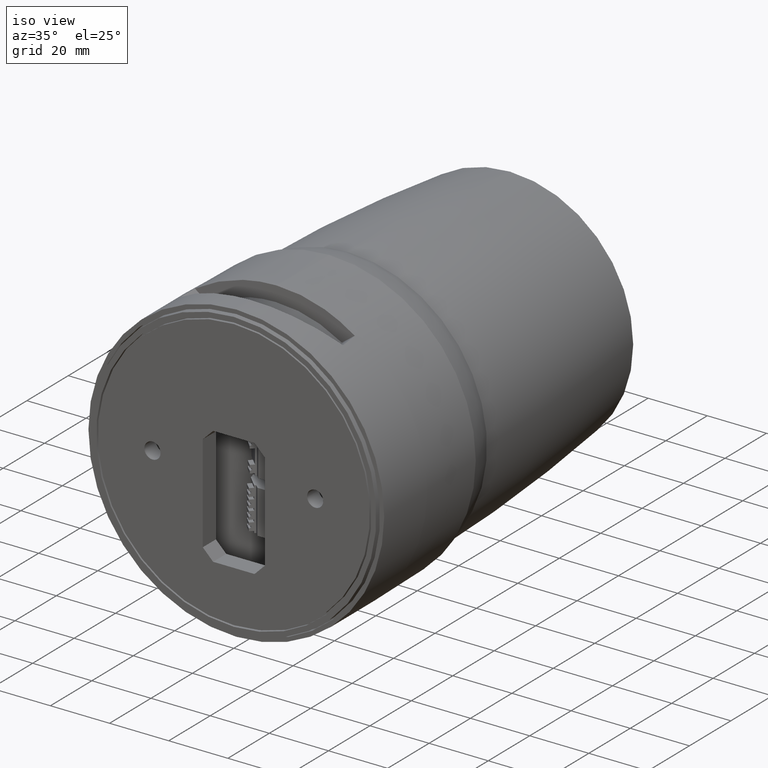
[diagram: clean part render]
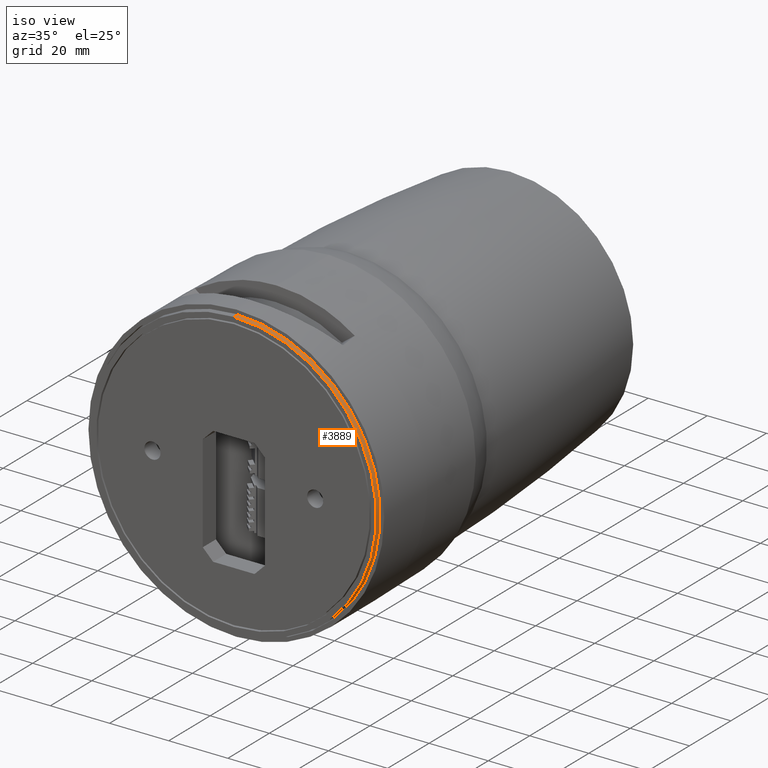
[diagram: same view with one face highlighted and labeled with its STEP entity id]
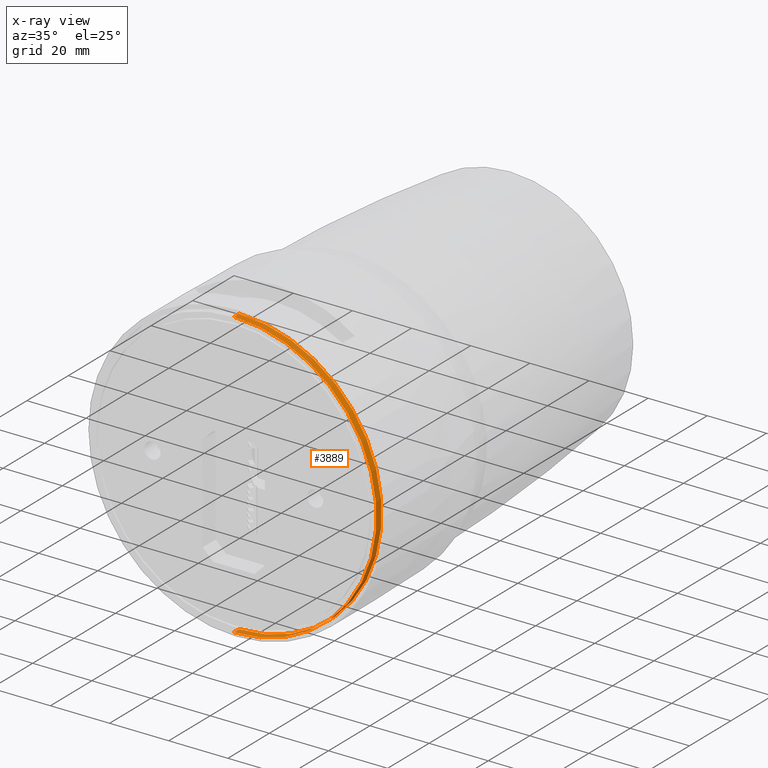
[diagram: x-ray of the same camera — body ghosted, the highlighted face saturated]
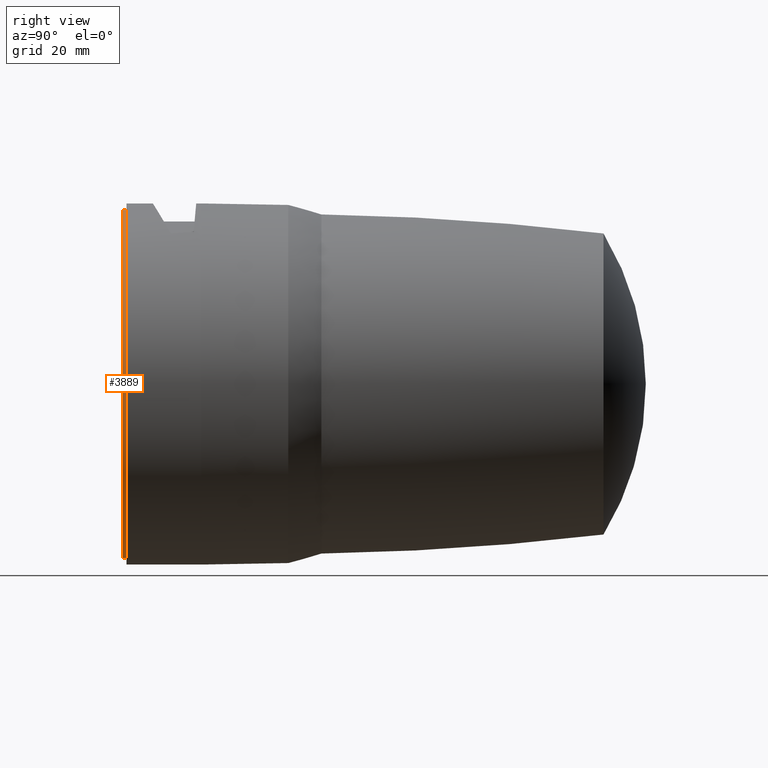
[diagram: same view with one face highlighted and labeled with its STEP entity id]
A machine part, iso view. The second image highlights one B-rep face of the part: STEP entity #3889.
The next image is the same camera in x-ray: the body ghosted, the highlighted face saturated — about 0% of this face is hidden behind the body in this view.
A second angle (right view) of the same face is appended — the face is thin or edge-on in the first view.
In plain terms, the highlighted cylindrical surface (partial cylindrical patch) has radius 48.2 mm, axis along (0, -1, 0).
Its self-contained STEP definition (entity closure, byte-faithful):
#304 = VECTOR ( 'NONE', #4359, 1000.000000000000000 ) ;
#1271 = CIRCLE ( 'NONE', #5238, 48.20000000000000284 ) ;
#1283 = CARTESIAN_POINT ( 'NONE',  ( 5.902797571890242503E-15, 0.000000000000000000, 48.20000000000000284 ) ) ;
#1427 = CYLINDRICAL_SURFACE ( 'NONE', #9335, 48.20000000000000284 ) ;
#1739 = AXIS2_PLACEMENT_3D ( 'NONE', #12402, #10528, #6250 ) ;
#2404 = EDGE_CURVE ( 'NONE', #4871, #11050, #10337, .T. ) ;
#2905 = EDGE_CURVE ( 'NONE', #6060, #4871, #11738, .T. ) ;
#2923 = EDGE_CURVE ( 'NONE', #10008, #11050, #5193, .T. ) ;
#3184 = DIRECTION ( 'NONE',  ( 0.000000000000000000, -1.000000000000000000, 0.000000000000000000 ) ) ;
#3430 = DIRECTION ( 'NONE',  ( 0.000000000000000000, -1.000000000000000000, 0.000000000000000000 ) ) ;
#3845 = CARTESIAN_POINT ( 'NONE',  ( 5.902797571890242503E-15, 2.500000000000000000, 48.20000000000000284 ) ) ;
#3889 = ADVANCED_FACE ( 'NONE', ( #6448 ), #1427, .T. ) ;
#4359 = DIRECTION ( 'NONE',  ( 0.000000000000000000, -1.000000000000000000, 0.000000000000000000 ) ) ;
#4871 = VERTEX_POINT ( 'NONE', #1283 ) ;
#5193 = LINE ( 'NONE', #7062, #304 ) ;
#5238 = AXIS2_PLACEMENT_3D ( 'NONE', #5906, #9076, #11157 ) ;
#5906 = CARTESIAN_POINT ( 'NONE',  ( 0.000000000000000000, 2.500000000000000000, 0.000000000000000000 ) ) ;
#6060 = VERTEX_POINT ( 'NONE', #3845 ) ;
#6239 = ORIENTED_EDGE ( 'NONE', *, *, #2905, .T. ) ;
#6250 = DIRECTION ( 'NONE',  ( 0.000000000000000000, 0.000000000000000000, 1.000000000000000000 ) ) ;
#6448 = FACE_OUTER_BOUND ( 'NONE', #7887, .T. ) ;
#7062 = CARTESIAN_POINT ( 'NONE',  ( 0.000000000000000000, 2.500000000000000000, -48.20000000000000284 ) ) ;
#7072 = CARTESIAN_POINT ( 'NONE',  ( 0.000000000000000000, 0.000000000000000000, -48.20000000000000284 ) ) ;
#7455 = CARTESIAN_POINT ( 'NONE',  ( 5.902797571890242503E-15, 2.500000000000000000, 48.20000000000000284 ) ) ;
#7887 = EDGE_LOOP ( 'NONE', ( #9304, #6239, #10931, #12770 ) ) ;
#8674 = CARTESIAN_POINT ( 'NONE',  ( 0.000000000000000000, 2.500000000000000000, 0.000000000000000000 ) ) ;
#9076 = DIRECTION ( 'NONE',  ( 0.000000000000000000, 1.000000000000000000, 0.000000000000000000 ) ) ;
#9141 = CARTESIAN_POINT ( 'NONE',  ( 0.000000000000000000, 2.500000000000000000, -48.20000000000000284 ) ) ;
#9304 = ORIENTED_EDGE ( 'NONE', *, *, #9965, .F. ) ;
#9335 = AXIS2_PLACEMENT_3D ( 'NONE', #8674, #3430, #10735 ) ;
#9965 = EDGE_CURVE ( 'NONE', #6060, #10008, #1271, .T. ) ;
#10008 = VERTEX_POINT ( 'NONE', #9141 ) ;
#10337 = CIRCLE ( 'NONE', #1739, 48.20000000000000284 ) ;
#10528 = DIRECTION ( 'NONE',  ( 0.000000000000000000, 1.000000000000000000, 0.000000000000000000 ) ) ;
#10657 = VECTOR ( 'NONE', #3184, 1000.000000000000000 ) ;
#10735 = DIRECTION ( 'NONE',  ( 0.000000000000000000, 0.000000000000000000, -1.000000000000000000 ) ) ;
#10931 = ORIENTED_EDGE ( 'NONE', *, *, #2404, .T. ) ;
#11050 = VERTEX_POINT ( 'NONE', #7072 ) ;
#11157 = DIRECTION ( 'NONE',  ( 0.000000000000000000, 0.000000000000000000, 1.000000000000000000 ) ) ;
#11738 = LINE ( 'NONE', #7455, #10657 ) ;
#12402 = CARTESIAN_POINT ( 'NONE',  ( 0.000000000000000000, 0.000000000000000000, 0.000000000000000000 ) ) ;
#12770 = ORIENTED_EDGE ( 'NONE', *, *, #2923, .F. ) ;